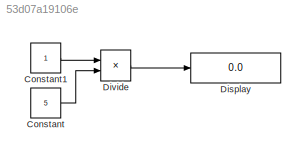
MODEL slx_53d07a19106e
KIND model
CONFIG AbsTol = auto
CONFIG EnableMultiTasking = off
CONFIG FixedStep = auto
CONFIG MaxStep = auto
CONFIG MinStep = auto
CONFIG RelTol = 1e-3
CONFIG SampleTimeConstraint = Unconstrained
CONFIG Solver = VariableStepAuto
CONFIG SolverName = VariableStepAuto
CONFIG StartTime = 0.0
CONFIG StopTime = 10.0
BLOCK [Constant] Constant
  Value = 5
BLOCK [Constant] Constant1
BLOCK [Display] Display
  Decimation = 1
  Ports = [1]
BLOCK [Product] Divide
  InputSameDT = off
  Inputs = //
  OutDataTypeStr = Inherit: Inherit via internal rule
  Ports = [2, 1]
  RndMeth = Floor
  SaturateOnIntegerOverflow = off
LINE Constant1:1 -> Divide:1
LINE Constant:1 -> Divide:2
LINE Divide:1 -> Display:1
